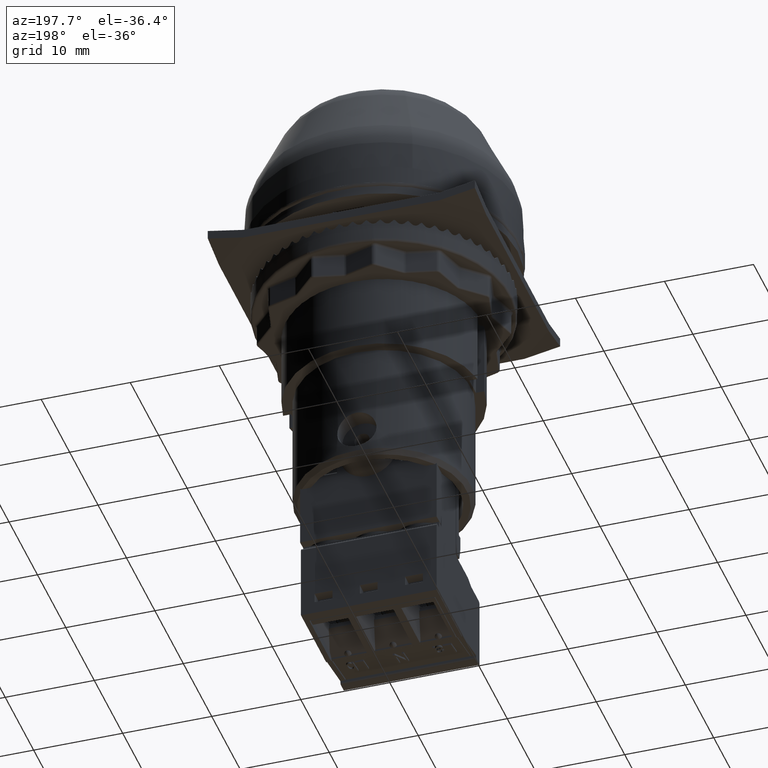
[diagram: clean part render]
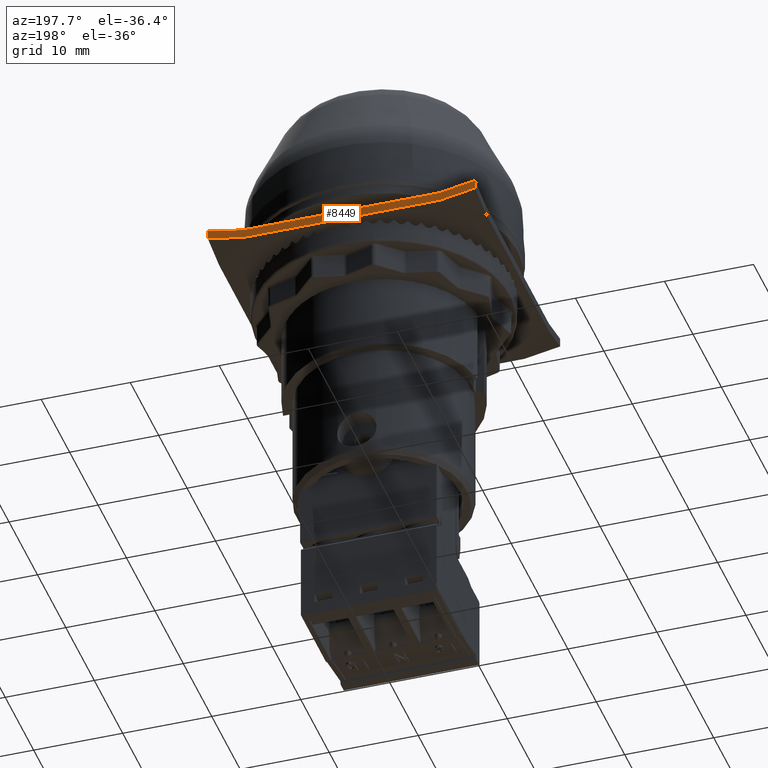
[diagram: same view with one face highlighted and labeled with its STEP entity id]
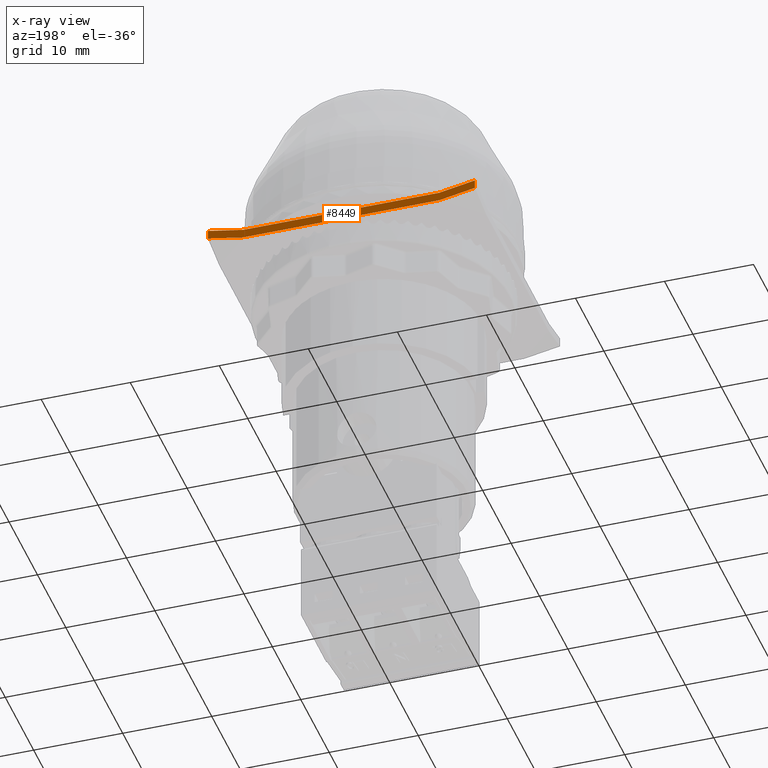
[diagram: x-ray of the same camera — body ghosted, the highlighted face saturated]
A machine part, auxiliary view. The second image highlights one B-rep face of the part: STEP entity #8449.
The next image is the same camera in x-ray: the body ghosted, the highlighted face saturated — about 0% of this face is hidden behind the body in this view.
In plain terms, the highlighted planar face has unit normal (0, 1, 0).
Its self-contained STEP definition (entity closure, byte-faithful):
#2155=FACE_OUTER_BOUND('',#10892,.T.);
#3561=LINE('',#49782,#5960);
#3569=LINE('',#49799,#5968);
#3594=LINE('',#49857,#5993);
#3595=LINE('',#49860,#5994);
#3596=LINE('',#49861,#5995);
#3597=LINE('',#49863,#5996);
#3598=LINE('',#49865,#5997);
#3599=LINE('',#49866,#5998);
#5960=VECTOR('',#32589,1.);
#5968=VECTOR('',#32599,1.);
#5993=VECTOR('',#32642,1.);
#5994=VECTOR('',#32643,1.);
#5995=VECTOR('',#32644,1.);
#5996=VECTOR('',#32645,1.);
#5997=VECTOR('',#32646,1.);
#5998=VECTOR('',#32647,1.);
#8449=ADVANCED_FACE('',(#2155),#9544,.T.);
#9544=PLANE('',#28929);
#10892=EDGE_LOOP('',(#14786,#14787,#14788,#14789,#14790,#14791,#14792,#14793));
#14786=ORIENTED_EDGE('',*,*,#24383,.F.);
#14787=ORIENTED_EDGE('',*,*,#24384,.T.);
#14788=ORIENTED_EDGE('',*,*,#24352,.T.);
#14789=ORIENTED_EDGE('',*,*,#24385,.F.);
#14790=ORIENTED_EDGE('',*,*,#24386,.T.);
#14791=ORIENTED_EDGE('',*,*,#24387,.T.);
#14792=ORIENTED_EDGE('',*,*,#24344,.T.);
#14793=ORIENTED_EDGE('',*,*,#24388,.F.);
#21140=VERTEX_POINT('',#49781);
#21141=VERTEX_POINT('',#49783);
#21148=VERTEX_POINT('',#49798);
#21149=VERTEX_POINT('',#49800);
#21173=VERTEX_POINT('',#49858);
#21174=VERTEX_POINT('',#49859);
#21175=VERTEX_POINT('',#49862);
#21176=VERTEX_POINT('',#49864);
#24344=EDGE_CURVE('',#21141,#21140,#3561,.T.);
#24352=EDGE_CURVE('',#21149,#21148,#3569,.T.);
#24383=EDGE_CURVE('',#21173,#21174,#3594,.T.);
#24384=EDGE_CURVE('',#21173,#21149,#3595,.T.);
#24385=EDGE_CURVE('',#21175,#21148,#3596,.T.);
#24386=EDGE_CURVE('',#21175,#21176,#3597,.T.);
#24387=EDGE_CURVE('',#21176,#21141,#3598,.T.);
#24388=EDGE_CURVE('',#21174,#21140,#3599,.T.);
#28929=AXIS2_PLACEMENT_3D('',#49867,#32648,#32649);
#32589=DIRECTION('',(-1.,0.,5.20417042793042E-018));
#32599=DIRECTION('',(1.,0.,-5.20417042793042E-018));
#32642=DIRECTION('',(-5.20417042793042E-018,0.,-1.));
#32643=DIRECTION('',(0.982971144594992,0.,-0.183759976310436));
#32644=DIRECTION('',(-0.982971144594992,0.,-0.183759976310436));
#32645=DIRECTION('',(-6.93889390390723E-018,0.,-1.));
#32646=DIRECTION('',(-0.982971144594992,0.,-0.183759976310436));
#32647=DIRECTION('',(0.982971144594992,0.,-0.183759976310436));
#32648=DIRECTION('',(0.,1.,0.));
#32649=DIRECTION('',(5.20417042793042E-018,0.,1.));
#49781=CARTESIAN_POINT('',(-12.7718430281067,2.6,27.6131759672629));
#49782=CARTESIAN_POINT('',(-9.27184302810666,2.6,27.6131759672629));
#49783=CARTESIAN_POINT('',(9.22815697189335,2.6,27.6131759672629));
#49798=CARTESIAN_POINT('',(9.22815697189335,2.6,28.6131759672629));
#49799=CARTESIAN_POINT('',(-9.27184302810666,2.6,28.6131759672629));
#49800=CARTESIAN_POINT('',(-12.7718430281067,2.6,28.6131759672629));
#49857=CARTESIAN_POINT('',(-16.7718430281067,2.6,28.6131759672629));
#49858=CARTESIAN_POINT('',(-16.7718430281067,2.6,29.3609496015994));
#49859=CARTESIAN_POINT('',(-16.7718430281067,2.6,28.3609496015994));
#49860=CARTESIAN_POINT('',(-17.6866987510816,2.6,29.5319758488151));
#49861=CARTESIAN_POINT('',(14.1430126948683,2.6,29.5319758488151));
#49862=CARTESIAN_POINT('',(13.2281569718934,2.6,29.3609496015994));
#49863=CARTESIAN_POINT('',(13.2281569718934,2.6,28.6131759672629));
#49864=CARTESIAN_POINT('',(13.2281569718934,2.6,28.3609496015994));
#49865=CARTESIAN_POINT('',(14.1430126948683,2.6,28.5319758488151));
#49866=CARTESIAN_POINT('',(-17.6866987510816,2.6,28.5319758488151));
#49867=CARTESIAN_POINT('',(-9.27184302810666,2.6,28.6131759672629));